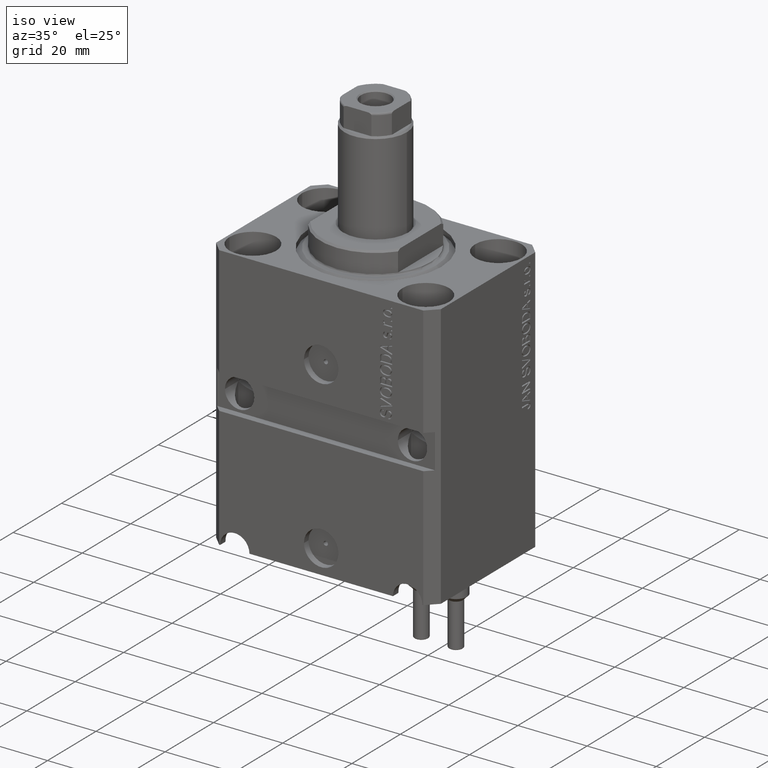
[diagram: clean part render]
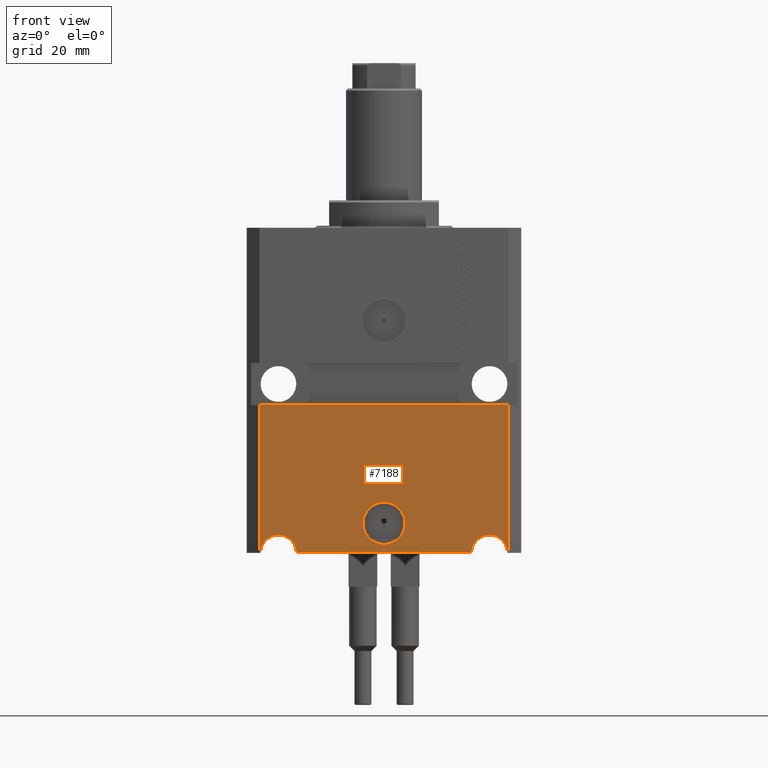
[diagram: tour spotlight — one face highlighted and labeled with its STEP entity id]
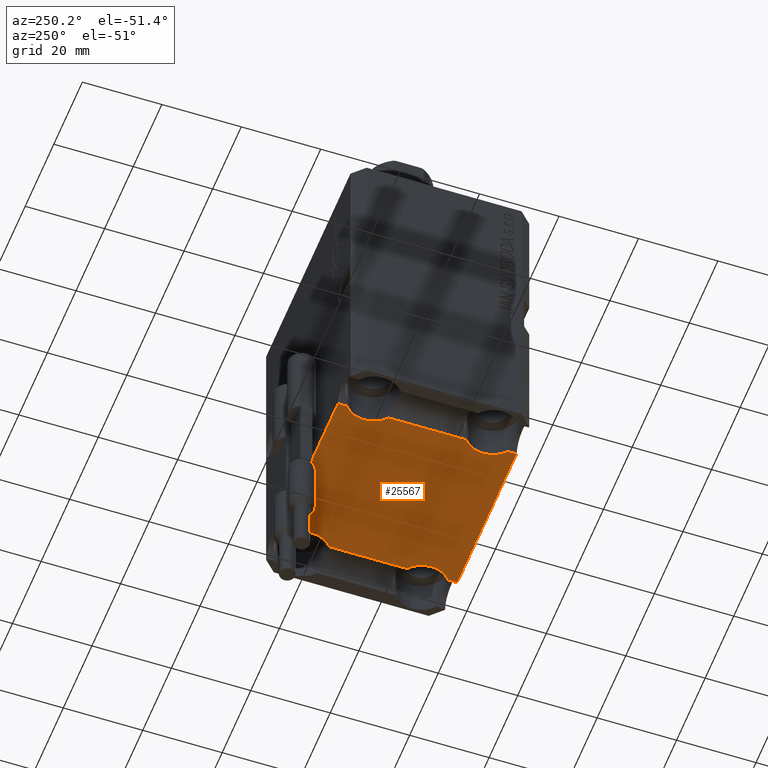
[diagram: tour spotlight — one face highlighted and labeled with its STEP entity id]
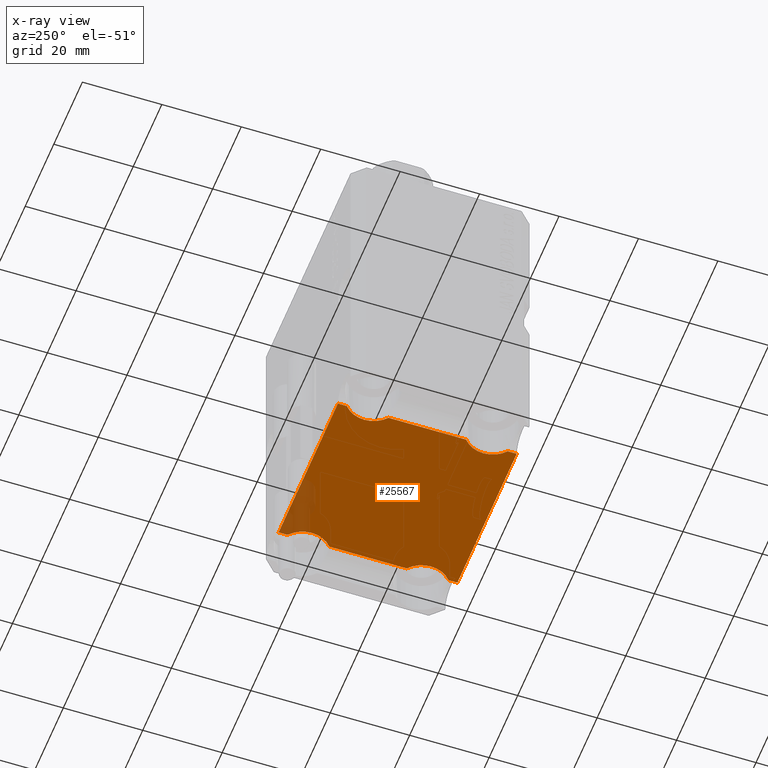
[diagram: x-ray of the same camera — body ghosted, this tour face saturated]
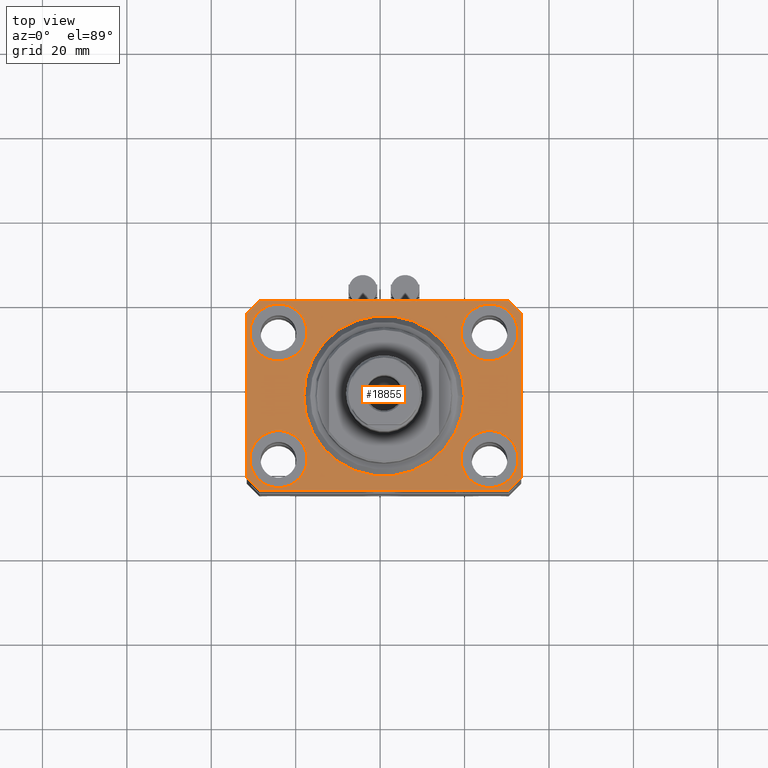
[diagram: tour spotlight — one face highlighted and labeled with its STEP entity id]
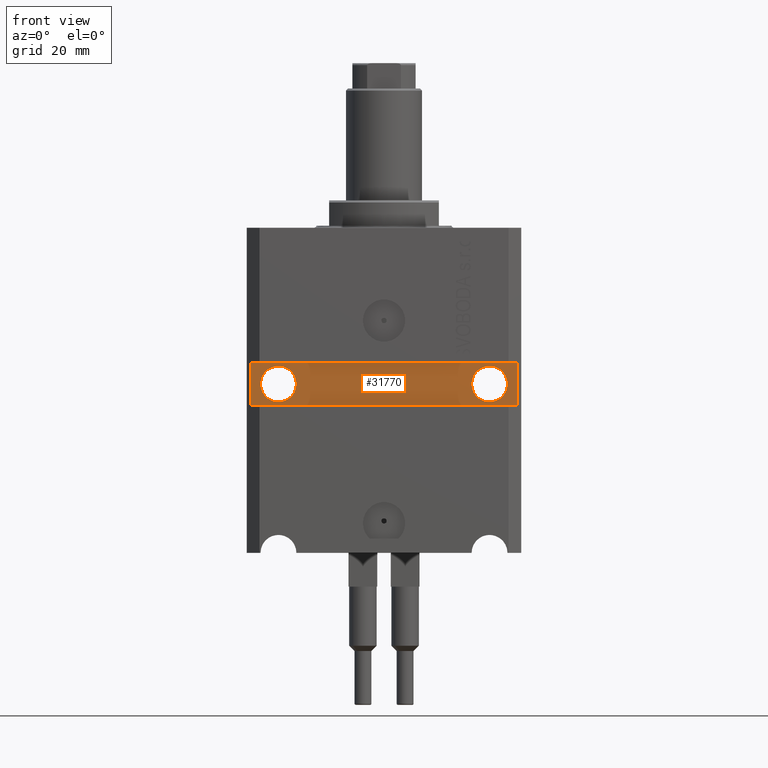
[diagram: tour spotlight — one face highlighted and labeled with its STEP entity id]
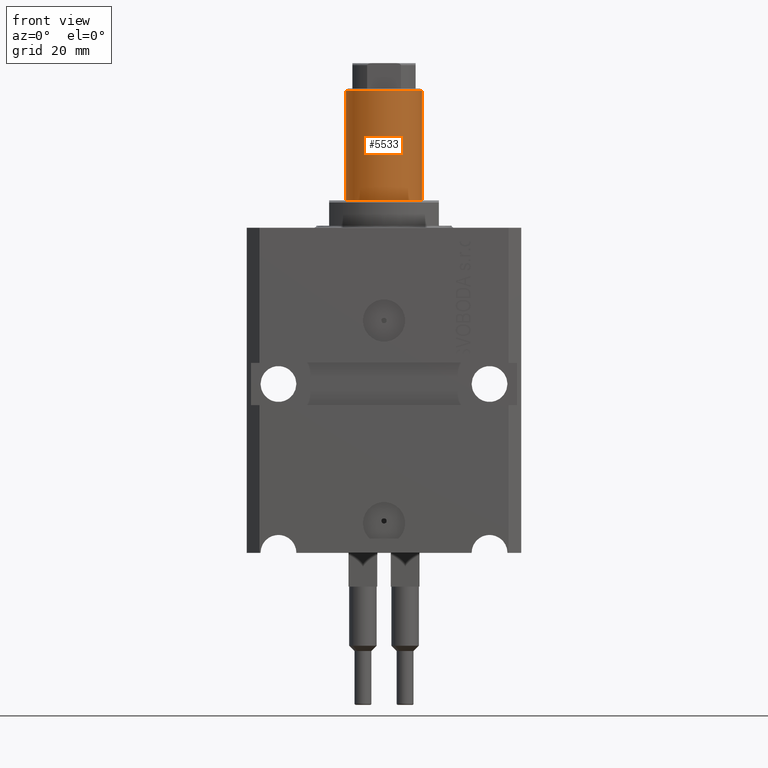
[diagram: tour spotlight — one face highlighted and labeled with its STEP entity id]
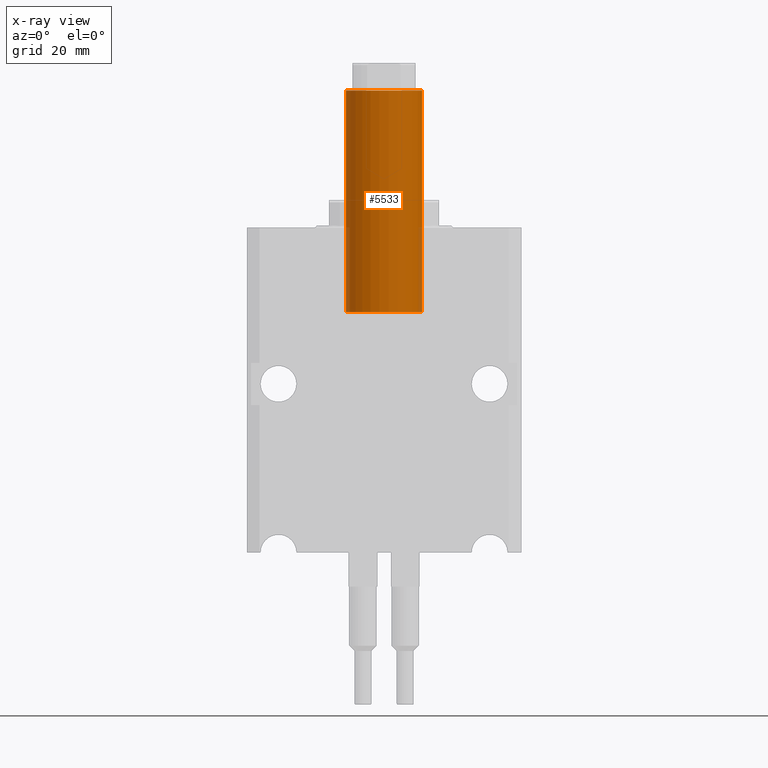
[diagram: x-ray of the same camera — body ghosted, this tour face saturated]
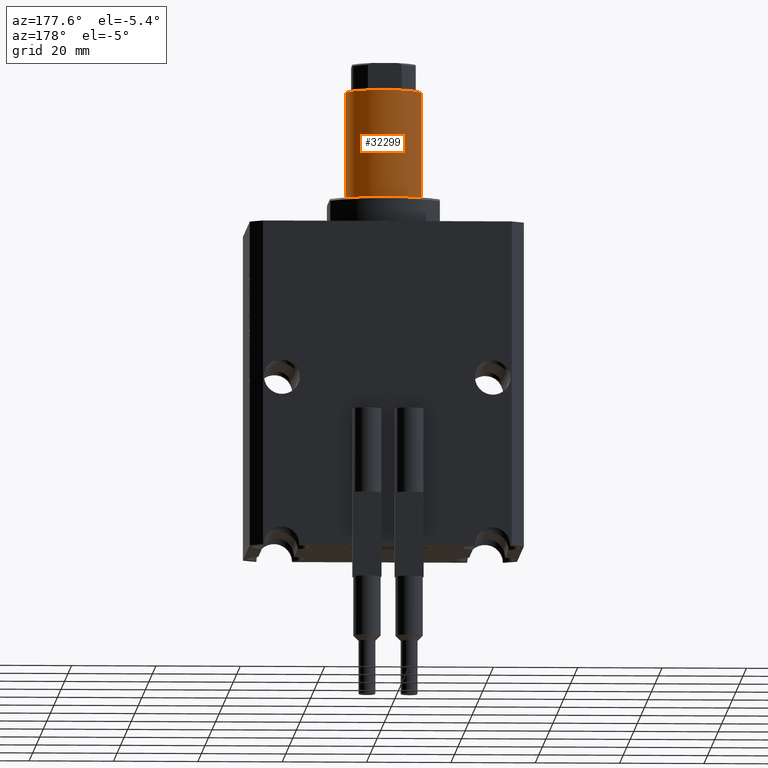
[diagram: tour spotlight — one face highlighted and labeled with its STEP entity id]
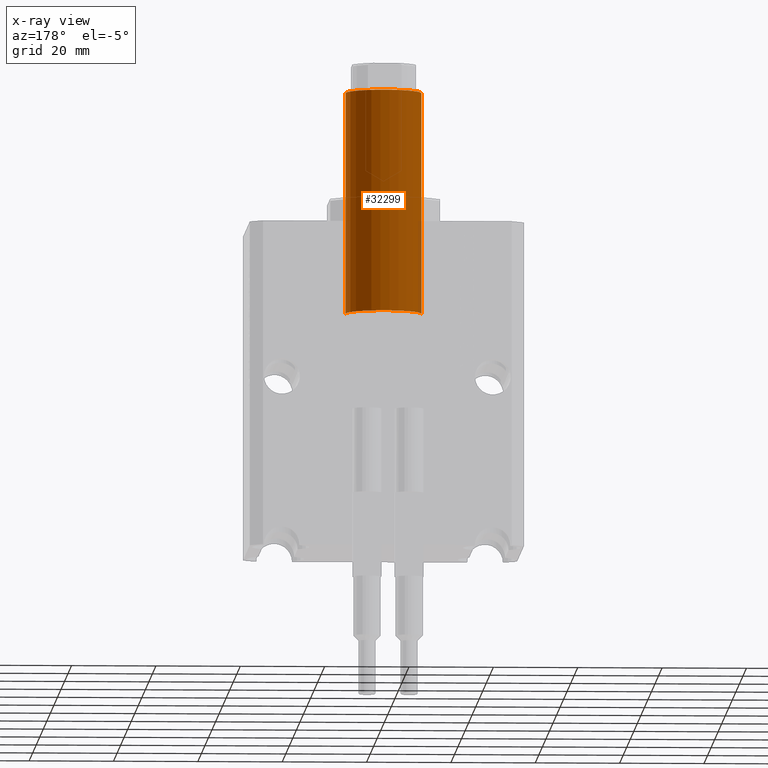
[diagram: x-ray of the same camera — body ghosted, this tour face saturated]
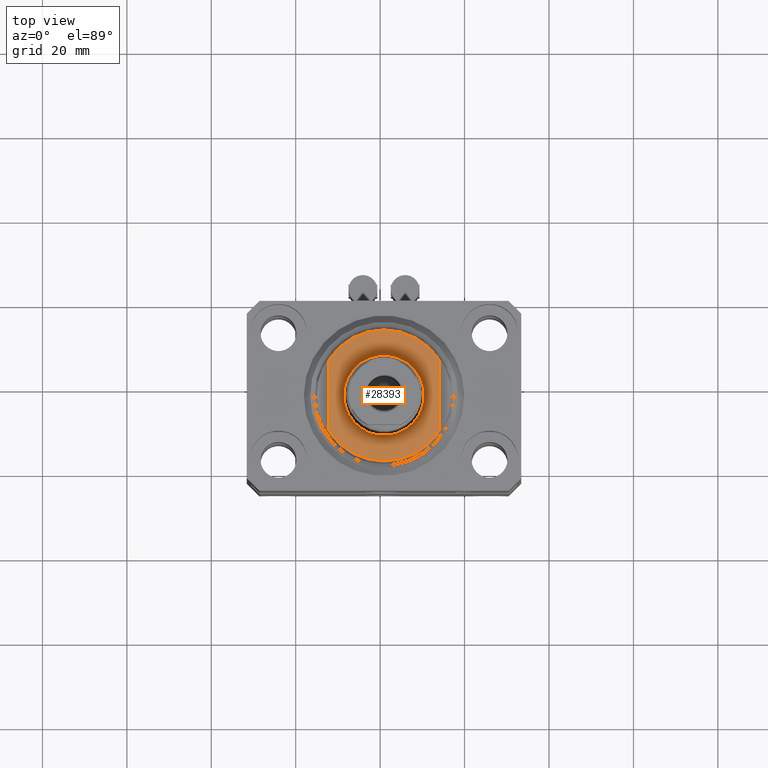
[diagram: tour spotlight — one face highlighted and labeled with its STEP entity id]
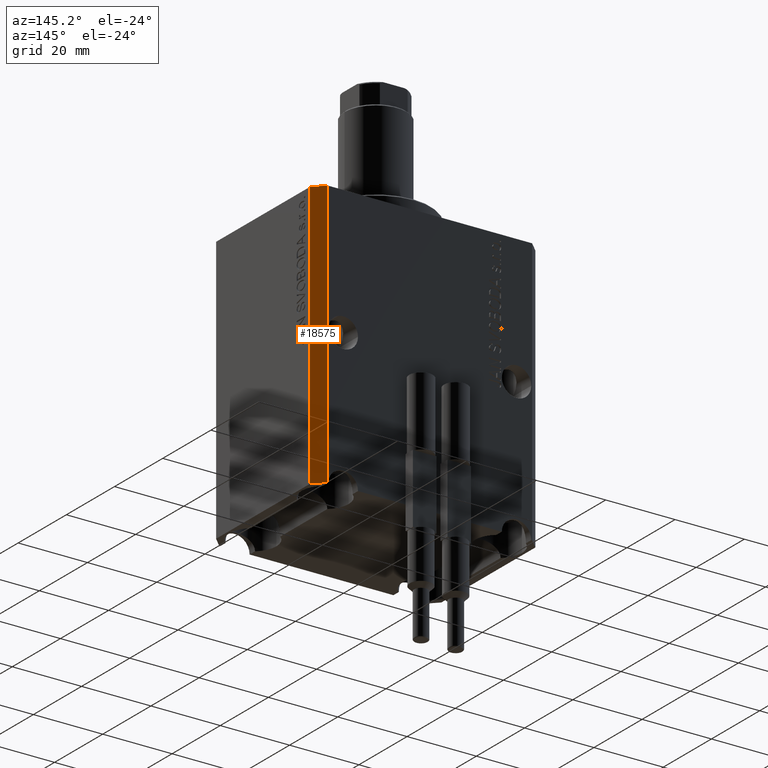
[diagram: tour spotlight — one face highlighted and labeled with its STEP entity id]
A machine part: a face-by-face anatomy tour. The part has 942 B-rep faces; the first image is the clean iso view, then the 8 largest visible faces are spotlighted one at a time (largest first), each with its STEP entity span.

Face 1 — front view, entity #7188. In plain terms, the highlighted planar face has unit normal (0, -1, 0).
Definition (entity closure, byte-faithful):
#49 = EDGE_CURVE ( 'NONE', #37355, #32564, #17503, .T. ) ;
#335 = CARTESIAN_POINT ( 'NONE',  ( -29.49999999999650413, -22.49999999999949907, -77.00000000000000000 ) ) ;
#1049 = ORIENTED_EDGE ( 'NONE', *, *, #6928, .F. ) ;
#1235 = EDGE_CURVE ( 'NONE', #37909, #37355, #30782, .T. ) ;
#1504 = CARTESIAN_POINT ( 'NONE',  ( 2.646188353185214061E-15, -22.49999999999949551, -69.99999999999998579 ) ) ;
#1871 = ORIENTED_EDGE ( 'NONE', *, *, #28465, .F. ) ;
#1921 = DIRECTION ( 'NONE',  ( 1.000000000000000000, 1.176083712526788232E-16, 0.000000000000000000 ) ) ;
#2574 = EDGE_CURVE ( 'NONE', #44089, #33179, #31419, .T. ) ;
#3001 = DIRECTION ( 'NONE',  ( -1.000000000000000000, 0.000000000000000000, 0.000000000000000000 ) ) ;
#3666 = EDGE_CURVE ( 'NONE', #22170, #32884, #26194, .T. ) ;
#3827 = CARTESIAN_POINT ( 'NONE',  ( -5.000000000000002665, -22.49999999999949551, -69.99999999999998579 ) ) ;
#3991 = PLANE ( 'NONE',  #37494 ) ;
#4064 = DIRECTION ( 'NONE',  ( 1.000000000000000000, 0.000000000000000000, 0.000000000000000000 ) ) ;
#4428 = VERTEX_POINT ( 'NONE', #32224 ) ;
#4723 = DIRECTION ( 'NONE',  ( 1.176083712526788232E-16, -1.000000000000000000, 0.000000000000000000 ) ) ;
#6928 = EDGE_CURVE ( 'NONE', #44089, #23544, #13746, .T. ) ;
#7188 = ADVANCED_FACE ( 'NONE', ( #27011, #31736 ), #3991, .T. ) ;
#7772 = AXIS2_PLACEMENT_3D ( 'NONE', #11399, #26011, #4064 ) ;
#8245 = VERTEX_POINT ( 'NONE', #3827 ) ;
#8329 = CARTESIAN_POINT ( 'NONE',  ( -29.49999999999650413, -22.49999999999949907, -41.99999999999999289 ) ) ;
#8832 = ORIENTED_EDGE ( 'NONE', *, *, #14986, .F. ) ;
#8926 = CARTESIAN_POINT ( 'NONE',  ( -32.49999999999650413, -22.49999999999949907, -41.99999999999999289 ) ) ;
#9190 = AXIS2_PLACEMENT_3D ( 'NONE', #13987, #23652, #3001 ) ;
#9461 = CARTESIAN_POINT ( 'NONE',  ( 20.75000000001094946, -22.49999999999949196, -77.00000000000000000 ) ) ;
#10593 = CIRCLE ( 'NONE', #36946, 4.249999999989057642 ) ;
#11088 = EDGE_CURVE ( 'NONE', #37909, #32884, #10593, .T. ) ;
#11135 = ORIENTED_EDGE ( 'NONE', *, *, #27193, .F. ) ;
#11399 = CARTESIAN_POINT ( 'NONE',  ( 2.646188353185214061E-15, -22.49999999999949551, -69.99999999999998579 ) ) ;
#11527 = CARTESIAN_POINT ( 'NONE',  ( -29.49999999999650413, -22.49999999999949907, -77.00000000000000000 ) ) ;
#12958 = VECTOR ( 'NONE', #16988, 1000.000000000000000 ) ;
#12972 = EDGE_CURVE ( 'NONE', #23544, #32564, #32988, .T. ) ;
#13017 = CARTESIAN_POINT ( 'NONE',  ( 25.00000000000000711, -22.49999999999949196, -76.99999999999998579 ) ) ;
#13296 = DIRECTION ( 'NONE',  ( 0.000000000000000000, 0.000000000000000000, 1.000000000000000000 ) ) ;
#13370 = CARTESIAN_POINT ( 'NONE',  ( -29.49999999999650413, -22.49999999999949907, -77.00000000000000000 ) ) ;
#13746 = LINE ( 'NONE', #27736, #27961 ) ;
#13987 = CARTESIAN_POINT ( 'NONE',  ( -25.00000000000000000, -22.49999999999949907, -76.99999999999998579 ) ) ;
#14124 = CIRCLE ( 'NONE', #21466, 5.000000000000005329 ) ;
#14425 = VECTOR ( 'NONE', #22758, 1000.000000000000000 ) ;
#14986 = EDGE_CURVE ( 'NONE', #4428, #8245, #14124, .T. ) ;
#15011 = VECTOR ( 'NONE', #1921, 1000.000000000000000 ) ;
#15757 = EDGE_LOOP ( 'NONE', ( #8832, #1871 ) ) ;
#15883 = CARTESIAN_POINT ( 'NONE',  ( -20.75000000002340883, -22.49999999999949907, -77.00000000000000000 ) ) ;
#16988 = DIRECTION ( 'NONE',  ( 1.000000000000000000, 1.176083712526788232E-16, 0.000000000000000000 ) ) ;
#17280 = DIRECTION ( 'NONE',  ( 0.000000000000000000, 0.000000000000000000, 1.000000000000000000 ) ) ;
#17503 = LINE ( 'NONE', #38138, #19029 ) ;
#17651 = CARTESIAN_POINT ( 'NONE',  ( -29.49999999999650413, -22.49999999999949907, -77.00000000000000000 ) ) ;
#19029 = VECTOR ( 'NONE', #17280, 1000.000000000000000 ) ;
#19668 = DIRECTION ( 'NONE',  ( 1.000000000000000000, 0.000000000000000000, 0.000000000000000000 ) ) ;
#20927 = ORIENTED_EDGE ( 'NONE', *, *, #2574, .T. ) ;
#21377 = CARTESIAN_POINT ( 'NONE',  ( -29.49999999999650413, -22.49999999999949907, -77.00000000000000000 ) ) ;
#21388 = EDGE_LOOP ( 'NONE', ( #33624, #24839, #29001, #34303, #1049, #20927, #11135, #29116 ) ) ;
#21466 = AXIS2_PLACEMENT_3D ( 'NONE', #1504, #4723, #39119 ) ;
#21655 = DIRECTION ( 'NONE',  ( 1.000000000000000000, 1.176083712526788232E-16, 0.000000000000000000 ) ) ;
#21986 = CARTESIAN_POINT ( 'NONE',  ( 29.49999999999650413, -22.49999999999949196, -77.00000000000000000 ) ) ;
#22170 = VERTEX_POINT ( 'NONE', #15883 ) ;
#22758 = DIRECTION ( 'NONE',  ( 1.000000000000000000, 1.176083712526788232E-16, 0.000000000000000000 ) ) ;
#23544 = VERTEX_POINT ( 'NONE', #8329 ) ;
#23652 = DIRECTION ( 'NONE',  ( 1.176083712526788232E-16, -1.000000000000000000, 0.000000000000000000 ) ) ;
#24016 = DIRECTION ( 'NONE',  ( 1.176083712526788232E-16, -1.000000000000000000, 0.000000000000000000 ) ) ;
#24839 = ORIENTED_EDGE ( 'NONE', *, *, #1235, .T. ) ;
#26011 = DIRECTION ( 'NONE',  ( 1.176083712526788232E-16, -1.000000000000000000, 0.000000000000000000 ) ) ;
#26194 = LINE ( 'NONE', #11527, #14425 ) ;
#26213 = CARTESIAN_POINT ( 'NONE',  ( 29.24999999998906475, -22.49999999999949196, -77.00000000000000000 ) ) ;
#26253 = CARTESIAN_POINT ( 'NONE',  ( 29.49999999999650058, -22.49999999999949196, -41.99999999999998579 ) ) ;
#27002 = DIRECTION ( 'NONE',  ( 1.176083712526788232E-16, -1.000000000000000000, 0.000000000000000000 ) ) ;
#27011 = FACE_BOUND ( 'NONE', #15757, .T. ) ;
#27193 = EDGE_CURVE ( 'NONE', #22170, #33179, #44326, .T. ) ;
#27736 = CARTESIAN_POINT ( 'NONE',  ( -29.49999999999650413, -22.49999999999949907, -77.00000000000000000 ) ) ;
#27961 = VECTOR ( 'NONE', #13296, 1000.000000000000000 ) ;
#28351 = CARTESIAN_POINT ( 'NONE',  ( -29.24999999997659472, -22.49999999999949907, -77.00000000000000000 ) ) ;
#28465 = EDGE_CURVE ( 'NONE', #8245, #4428, #34125, .T. ) ;
#29001 = ORIENTED_EDGE ( 'NONE', *, *, #49, .T. ) ;
#29116 = ORIENTED_EDGE ( 'NONE', *, *, #3666, .T. ) ;
#30782 = LINE ( 'NONE', #13370, #15011 ) ;
#31419 = LINE ( 'NONE', #17651, #12958 ) ;
#31736 = FACE_OUTER_BOUND ( 'NONE', #21388, .T. ) ;
#32224 = CARTESIAN_POINT ( 'NONE',  ( 5.000000000000007994, -22.49999999999949551, -69.99999999999998579 ) ) ;
#32564 = VERTEX_POINT ( 'NONE', #26253 ) ;
#32884 = VERTEX_POINT ( 'NONE', #9461 ) ;
#32988 = LINE ( 'NONE', #8926, #41257 ) ;
#33179 = VERTEX_POINT ( 'NONE', #28351 ) ;
#33624 = ORIENTED_EDGE ( 'NONE', *, *, #11088, .F. ) ;
#34125 = CIRCLE ( 'NONE', #7772, 5.000000000000005329 ) ;
#34303 = ORIENTED_EDGE ( 'NONE', *, *, #12972, .F. ) ;
#36946 = AXIS2_PLACEMENT_3D ( 'NONE', #13017, #27002, #19668 ) ;
#37349 = DIRECTION ( 'NONE',  ( 1.000000000000000000, 1.067522139062765303E-16, 1.067522139062765303E-16 ) ) ;
#37355 = VERTEX_POINT ( 'NONE', #21986 ) ;
#37494 = AXIS2_PLACEMENT_3D ( 'NONE', #335, #24016, #21655 ) ;
#37909 = VERTEX_POINT ( 'NONE', #26213 ) ;
#38138 = CARTESIAN_POINT ( 'NONE',  ( 29.49999999999650413, -22.49999999999949196, -77.00000000000000000 ) ) ;
#39119 = DIRECTION ( 'NONE',  ( 1.000000000000000000, 0.000000000000000000, 0.000000000000000000 ) ) ;
#41257 = VECTOR ( 'NONE', #37349, 1000.000000000000000 ) ;
#44089 = VERTEX_POINT ( 'NONE', #21377 ) ;
#44326 = CIRCLE ( 'NONE', #9190, 4.249999999976592058 ) ;

Face 2 — auxiliary view, entity #25567. An x-ray twin of the same camera follows (body ghosted, this face saturated) — the face is partly hidden behind the body. In plain terms, the highlighted planar face has unit normal (0, 0, 1).
Definition (entity closure, byte-faithful):
#196 = CARTESIAN_POINT ( 'NONE',  ( 20.75000000001094236, 20.24404424080615783, -77.00000000000000000 ) ) ;
#497 = CARTESIAN_POINT ( 'NONE',  ( -25.00000000000000355, -15.00000000000000000, -77.00000000000000000 ) ) ;
#972 = AXIS2_PLACEMENT_3D ( 'NONE', #1452, #24851, #28303 ) ;
#1277 = CARTESIAN_POINT ( 'NONE',  ( -20.75000000002341949, 22.49999999999952038, -77.00000000000000000 ) ) ;
#1319 = CARTESIAN_POINT ( 'NONE',  ( -20.75000000002341594, 22.49999999999952038, -77.00000000000000000 ) ) ;
#1349 = LINE ( 'NONE', #15333, #40193 ) ;
#1452 = CARTESIAN_POINT ( 'NONE',  ( 24.99999999999999645, 15.00000000000000888, -77.00000000000000000 ) ) ;
#1726 = CARTESIAN_POINT ( 'NONE',  ( 29.49999999999707967, 22.49999999999951328, -77.00000000000000000 ) ) ;
#2331 = ORIENTED_EDGE ( 'NONE', *, *, #15473, .T. ) ;
#2697 = EDGE_CURVE ( 'NONE', #35192, #7509, #42958, .T. ) ;
#3088 = VECTOR ( 'NONE', #10650, 1000.000000000000000 ) ;
#3155 = CIRCLE ( 'NONE', #972, 6.749999999958452790 ) ;
#3347 = VERTEX_POINT ( 'NONE', #196 ) ;
#3666 = EDGE_CURVE ( 'NONE', #22170, #32884, #26194, .T. ) ;
#4178 = ORIENTED_EDGE ( 'NONE', *, *, #39085, .T. ) ;
#4691 = DIRECTION ( 'NONE',  ( 1.000000000000000000, 0.000000000000000000, 0.000000000000000000 ) ) ;
#5841 = LINE ( 'NONE', #1726, #39480 ) ;
#5874 = DIRECTION ( 'NONE',  ( 1.000000000000000000, 0.000000000000000000, 0.000000000000000000 ) ) ;
#6937 = AXIS2_PLACEMENT_3D ( 'NONE', #36107, #25775, #4691 ) ;
#7056 = DIRECTION ( 'NONE',  ( 1.000000000000000000, 0.000000000000000000, 0.000000000000000000 ) ) ;
#7509 = VERTEX_POINT ( 'NONE', #19338 ) ;
#7592 = CARTESIAN_POINT ( 'NONE',  ( 20.75000000001094591, -9.755955759169378183, -77.00000000000000000 ) ) ;
#7966 = EDGE_CURVE ( 'NONE', #9433, #9208, #1349, .T. ) ;
#7972 = AXIS2_PLACEMENT_3D ( 'NONE', #10687, #41863, #14128 ) ;
#8049 = DIRECTION ( 'NONE',  ( -0.000000000000000000, -0.000000000000000000, 1.000000000000000000 ) ) ;
#8152 = LINE ( 'NONE', #1277, #22609 ) ;
#8386 = DIRECTION ( 'NONE',  ( -1.176083712526788478E-16, 1.000000000000000000, 0.000000000000000000 ) ) ;
#9208 = VERTEX_POINT ( 'NONE', #1319 ) ;
#9223 = AXIS2_PLACEMENT_3D ( 'NONE', #13481, #38012, #7056 ) ;
#9433 = VERTEX_POINT ( 'NONE', #14066 ) ;
#9461 = CARTESIAN_POINT ( 'NONE',  ( 20.75000000001094946, -22.49999999999949196, -77.00000000000000000 ) ) ;
#10286 = CARTESIAN_POINT ( 'NONE',  ( -18.24999999997747224, 15.00000000000000000, -77.00000000000000000 ) ) ;
#10650 = DIRECTION ( 'NONE',  ( 1.176083712526788478E-16, -1.000000000000000000, -0.000000000000000000 ) ) ;
#10687 = CARTESIAN_POINT ( 'NONE',  ( -25.00000000000000355, 15.00000000000000000, -77.00000000000000000 ) ) ;
#11108 = AXIS2_PLACEMENT_3D ( 'NONE', #19640, #37518, #5874 ) ;
#11255 = EDGE_CURVE ( 'NONE', #21034, #13891, #31799, .T. ) ;
#11426 = CARTESIAN_POINT ( 'NONE',  ( 18.25000000004154543, 15.00000000000000888, -77.00000000000000000 ) ) ;
#11527 = CARTESIAN_POINT ( 'NONE',  ( -29.49999999999650413, -22.49999999999949907, -77.00000000000000000 ) ) ;
#11963 = CARTESIAN_POINT ( 'NONE',  ( 20.75000000001094591, -20.24404424083062182, -77.00000000000000000 ) ) ;
#12343 = FACE_OUTER_BOUND ( 'NONE', #14742, .T. ) ;
#12629 = ORIENTED_EDGE ( 'NONE', *, *, #23838, .T. ) ;
#12882 = ORIENTED_EDGE ( 'NONE', *, *, #36873, .F. ) ;
#13038 = CARTESIAN_POINT ( 'NONE',  ( -20.75000000002341594, -9.755955759076794465, -77.00000000000000000 ) ) ;
#13481 = CARTESIAN_POINT ( 'NONE',  ( 25.00000000000000355, -15.00000000000000000, -77.00000000000000000 ) ) ;
#13838 = LINE ( 'NONE', #34471, #15434 ) ;
#13891 = VERTEX_POINT ( 'NONE', #10286 ) ;
#14066 = CARTESIAN_POINT ( 'NONE',  ( -20.75000000002341594, 20.24404424089873444, -77.00000000000000000 ) ) ;
#14128 = DIRECTION ( 'NONE',  ( 1.000000000000000000, 0.000000000000000000, 0.000000000000000000 ) ) ;
#14425 = VECTOR ( 'NONE', #22758, 1000.000000000000000 ) ;
#14430 = DIRECTION ( 'NONE',  ( -1.176083712526788478E-16, 1.000000000000000000, 0.000000000000000000 ) ) ;
#14728 = VERTEX_POINT ( 'NONE', #37777 ) ;
#14742 = EDGE_LOOP ( 'NONE', ( #12882, #40399, #2331, #12629, #39975, #38694, #19974, #40154, #18127, #25676, #40870, #4178, #25152, #41731, #25712, #42463 ) ) ;
#14781 = CIRCLE ( 'NONE', #43311, 6.749999999958452790 ) ;
#15333 = CARTESIAN_POINT ( 'NONE',  ( -20.75000000002341949, 22.49999999999952038, -77.00000000000000000 ) ) ;
#15434 = VECTOR ( 'NONE', #45014, 1000.000000000000000 ) ;
#15473 = EDGE_CURVE ( 'NONE', #3347, #18170, #3155, .T. ) ;
#15806 = CARTESIAN_POINT ( 'NONE',  ( 20.75000000001094591, 9.755955759193856380, -77.00000000000000000 ) ) ;
#15883 = CARTESIAN_POINT ( 'NONE',  ( -20.75000000002340883, -22.49999999999949907, -77.00000000000000000 ) ) ;
#17266 = CIRCLE ( 'NONE', #9223, 6.749999999977465137 ) ;
#17458 = CIRCLE ( 'NONE', #33560, 6.750000000041541881 ) ;
#17674 = DIRECTION ( 'NONE',  ( -0.000000000000000000, -0.000000000000000000, 1.000000000000000000 ) ) ;
#17679 = CIRCLE ( 'NONE', #11108, 6.749999999977465137 ) ;
#18127 = ORIENTED_EDGE ( 'NONE', *, *, #3666, .F. ) ;
#18170 = VERTEX_POINT ( 'NONE', #11426 ) ;
#19212 = CARTESIAN_POINT ( 'NONE',  ( 18.25000000002253842, -15.00000000000000000, -77.00000000000000000 ) ) ;
#19338 = CARTESIAN_POINT ( 'NONE',  ( -18.24999999995845812, -15.00000000000000000, -77.00000000000000000 ) ) ;
#19381 = DIRECTION ( 'NONE',  ( -1.000000000000000000, -2.352167425053553784E-16, 0.000000000000000000 ) ) ;
#19487 = DIRECTION ( 'NONE',  ( 1.176083712526788478E-16, -1.000000000000000000, -0.000000000000000000 ) ) ;
#19640 = CARTESIAN_POINT ( 'NONE',  ( 25.00000000000000355, -15.00000000000000000, -77.00000000000000000 ) ) ;
#19974 = ORIENTED_EDGE ( 'NONE', *, *, #20580, .T. ) ;
#20580 = EDGE_CURVE ( 'NONE', #34214, #27868, #17679, .T. ) ;
#21034 = VERTEX_POINT ( 'NONE', #38137 ) ;
#21076 = EDGE_CURVE ( 'NONE', #14728, #3347, #13838, .T. ) ;
#21588 = DIRECTION ( 'NONE',  ( 1.000000000000000000, 0.000000000000000000, 0.000000000000000000 ) ) ;
#21672 = EDGE_CURVE ( 'NONE', #22170, #35192, #29344, .T. ) ;
#22170 = VERTEX_POINT ( 'NONE', #15883 ) ;
#22609 = VECTOR ( 'NONE', #8386, 1000.000000000000000 ) ;
#22758 = DIRECTION ( 'NONE',  ( 1.000000000000000000, 1.176083712526788232E-16, 0.000000000000000000 ) ) ;
#23375 = CARTESIAN_POINT ( 'NONE',  ( -25.00000000000000355, -15.00000000000000000, -77.00000000000000000 ) ) ;
#23502 = VECTOR ( 'NONE', #44401, 1000.000000000000000 ) ;
#23813 = VERTEX_POINT ( 'NONE', #7592 ) ;
#23838 = EDGE_CURVE ( 'NONE', #18170, #27392, #14781, .T. ) ;
#24045 = CARTESIAN_POINT ( 'NONE',  ( 20.75000000001094236, 22.49999999999952749, -77.00000000000000000 ) ) ;
#24469 = DIRECTION ( 'NONE',  ( 0.000000000000000000, 0.000000000000000000, 1.000000000000000000 ) ) ;
#24851 = DIRECTION ( 'NONE',  ( -0.000000000000000000, -0.000000000000000000, 1.000000000000000000 ) ) ;
#25152 = ORIENTED_EDGE ( 'NONE', *, *, #38552, .T. ) ;
#25567 = ADVANCED_FACE ( 'NONE', ( #12343 ), #26336, .F. ) ;
#25676 = ORIENTED_EDGE ( 'NONE', *, *, #21672, .T. ) ;
#25712 = ORIENTED_EDGE ( 'NONE', *, *, #32338, .T. ) ;
#25775 = DIRECTION ( 'NONE',  ( -0.000000000000000000, -0.000000000000000000, 1.000000000000000000 ) ) ;
#26194 = LINE ( 'NONE', #11527, #14425 ) ;
#26336 = PLANE ( 'NONE',  #41355 ) ;
#27392 = VERTEX_POINT ( 'NONE', #15806 ) ;
#27490 = LINE ( 'NONE', #24045, #41473 ) ;
#27868 = VERTEX_POINT ( 'NONE', #11963 ) ;
#28303 = DIRECTION ( 'NONE',  ( 1.000000000000000000, 0.000000000000000000, 0.000000000000000000 ) ) ;
#28364 = EDGE_CURVE ( 'NONE', #23813, #34214, #17266, .T. ) ;
#29344 = LINE ( 'NONE', #44622, #23502 ) ;
#30099 = EDGE_CURVE ( 'NONE', #27868, #32884, #27490, .T. ) ;
#30498 = AXIS2_PLACEMENT_3D ( 'NONE', #23375, #41231, #43760 ) ;
#30886 = CARTESIAN_POINT ( 'NONE',  ( 0.000000000000000000, 0.000000000000000000, -77.00000000000000000 ) ) ;
#31119 = DIRECTION ( 'NONE',  ( 1.000000000000000000, 0.000000000000000000, -0.000000000000000000 ) ) ;
#31799 = CIRCLE ( 'NONE', #6937, 6.750000000022533087 ) ;
#32338 = EDGE_CURVE ( 'NONE', #13891, #9433, #37982, .T. ) ;
#32798 = DIRECTION ( 'NONE',  ( 1.000000000000000000, 0.000000000000000000, 0.000000000000000000 ) ) ;
#32884 = VERTEX_POINT ( 'NONE', #9461 ) ;
#33560 = AXIS2_PLACEMENT_3D ( 'NONE', #497, #8049, #32798 ) ;
#34214 = VERTEX_POINT ( 'NONE', #19212 ) ;
#34471 = CARTESIAN_POINT ( 'NONE',  ( 20.75000000001094236, 22.49999999999952749, -77.00000000000000000 ) ) ;
#35171 = LINE ( 'NONE', #42501, #3088 ) ;
#35192 = VERTEX_POINT ( 'NONE', #40930 ) ;
#36107 = CARTESIAN_POINT ( 'NONE',  ( -25.00000000000000355, 15.00000000000000000, -77.00000000000000000 ) ) ;
#36873 = EDGE_CURVE ( 'NONE', #14728, #9208, #5841, .T. ) ;
#37518 = DIRECTION ( 'NONE',  ( -0.000000000000000000, -0.000000000000000000, 1.000000000000000000 ) ) ;
#37777 = CARTESIAN_POINT ( 'NONE',  ( 20.75000000001094236, 22.49999999999952749, -77.00000000000000000 ) ) ;
#37982 = CIRCLE ( 'NONE', #7972, 6.750000000022533087 ) ;
#38012 = DIRECTION ( 'NONE',  ( -0.000000000000000000, -0.000000000000000000, 1.000000000000000000 ) ) ;
#38137 = CARTESIAN_POINT ( 'NONE',  ( -20.75000000002341949, 9.755955759101265556, -77.00000000000000000 ) ) ;
#38552 = EDGE_CURVE ( 'NONE', #44451, #21034, #8152, .T. ) ;
#38694 = ORIENTED_EDGE ( 'NONE', *, *, #28364, .T. ) ;
#38764 = CARTESIAN_POINT ( 'NONE',  ( 24.99999999999999645, 15.00000000000000888, -77.00000000000000000 ) ) ;
#39085 = EDGE_CURVE ( 'NONE', #7509, #44451, #17458, .T. ) ;
#39480 = VECTOR ( 'NONE', #19381, 1000.000000000000000 ) ;
#39797 = EDGE_CURVE ( 'NONE', #27392, #23813, #35171, .T. ) ;
#39975 = ORIENTED_EDGE ( 'NONE', *, *, #39797, .T. ) ;
#40154 = ORIENTED_EDGE ( 'NONE', *, *, #30099, .T. ) ;
#40193 = VECTOR ( 'NONE', #14430, 1000.000000000000000 ) ;
#40399 = ORIENTED_EDGE ( 'NONE', *, *, #21076, .T. ) ;
#40870 = ORIENTED_EDGE ( 'NONE', *, *, #2697, .T. ) ;
#40930 = CARTESIAN_POINT ( 'NONE',  ( -20.75000000002341594, -20.24404424092320554, -77.00000000000000000 ) ) ;
#41231 = DIRECTION ( 'NONE',  ( -0.000000000000000000, -0.000000000000000000, 1.000000000000000000 ) ) ;
#41355 = AXIS2_PLACEMENT_3D ( 'NONE', #30886, #24469, #31119 ) ;
#41473 = VECTOR ( 'NONE', #19487, 1000.000000000000000 ) ;
#41731 = ORIENTED_EDGE ( 'NONE', *, *, #11255, .T. ) ;
#41863 = DIRECTION ( 'NONE',  ( -0.000000000000000000, -0.000000000000000000, 1.000000000000000000 ) ) ;
#42463 = ORIENTED_EDGE ( 'NONE', *, *, #7966, .T. ) ;
#42501 = CARTESIAN_POINT ( 'NONE',  ( 20.75000000001094236, 22.49999999999952749, -77.00000000000000000 ) ) ;
#42958 = CIRCLE ( 'NONE', #30498, 6.750000000041541881 ) ;
#43311 = AXIS2_PLACEMENT_3D ( 'NONE', #38764, #17674, #21588 ) ;
#43760 = DIRECTION ( 'NONE',  ( 1.000000000000000000, 0.000000000000000000, 0.000000000000000000 ) ) ;
#44401 = DIRECTION ( 'NONE',  ( -1.176083712526788478E-16, 1.000000000000000000, 0.000000000000000000 ) ) ;
#44451 = VERTEX_POINT ( 'NONE', #13038 ) ;
#44622 = CARTESIAN_POINT ( 'NONE',  ( -20.75000000002341949, 22.49999999999952038, -77.00000000000000000 ) ) ;
#45014 = DIRECTION ( 'NONE',  ( 1.176083712526788478E-16, -1.000000000000000000, -0.000000000000000000 ) ) ;

Face 3 — top view, entity #18855. In plain terms, the highlighted planar face has unit normal (0, 0, 1).
Definition (entity closure, byte-faithful):
#662 = CARTESIAN_POINT ( 'NONE',  ( -32.49999999999650413, -19.49999999999949907, 0.000000000000000000 ) ) ;
#1254 = EDGE_CURVE ( 'NONE', #40457, #27078, #39880, .T. ) ;
#1255 = VERTEX_POINT ( 'NONE', #31916 ) ;
#1554 = CARTESIAN_POINT ( 'NONE',  ( 32.49999999999651124, -19.49999999999949196, 0.000000000000000000 ) ) ;
#1647 = VECTOR ( 'NONE', #40247, 1000.000000000000000 ) ;
#1653 = AXIS2_PLACEMENT_3D ( 'NONE', #32908, #43669, #15719 ) ;
#1832 = VERTEX_POINT ( 'NONE', #44216 ) ;
#1954 = EDGE_CURVE ( 'NONE', #42399, #1832, #5371, .T. ) ;
#1967 = CARTESIAN_POINT ( 'NONE',  ( -32.49999999999650413, 19.49999999999949907, 0.000000000000000000 ) ) ;
#2564 = VERTEX_POINT ( 'NONE', #34638 ) ;
#2734 = DIRECTION ( 'NONE',  ( 0.000000000000000000, 0.000000000000000000, 1.000000000000000000 ) ) ;
#2868 = EDGE_CURVE ( 'NONE', #31639, #31306, #3430, .T. ) ;
#3136 = LINE ( 'NONE', #6803, #16022 ) ;
#3386 = DIRECTION ( 'NONE',  ( 0.000000000000000000, 0.000000000000000000, 1.000000000000000000 ) ) ;
#3396 = CARTESIAN_POINT ( 'NONE',  ( 25.00000000000000355, -15.00000000000000000, 0.000000000000000000 ) ) ;
#3426 = FACE_BOUND ( 'NONE', #32605, .T. ) ;
#3430 = CIRCLE ( 'NONE', #36357, 6.749999999977465137 ) ;
#3468 = VERTEX_POINT ( 'NONE', #7190 ) ;
#3975 = LINE ( 'NONE', #14072, #27221 ) ;
#4594 = AXIS2_PLACEMENT_3D ( 'NONE', #10310, #39174, #17405 ) ;
#4623 = CIRCLE ( 'NONE', #10455, 6.749999999977465137 ) ;
#5371 = CIRCLE ( 'NONE', #32476, 19.00000000000000000 ) ;
#5599 = ORIENTED_EDGE ( 'NONE', *, *, #23420, .T. ) ;
#6042 = ORIENTED_EDGE ( 'NONE', *, *, #2868, .F. ) ;
#6803 = CARTESIAN_POINT ( 'NONE',  ( 29.49999999999650413, -22.49999999999949196, 0.000000000000000000 ) ) ;
#7190 = CARTESIAN_POINT ( 'NONE',  ( -29.49999999999650413, 22.49999999999949907, 0.000000000000000000 ) ) ;
#7500 = VERTEX_POINT ( 'NONE', #22779 ) ;
#7521 = CARTESIAN_POINT ( 'NONE',  ( 18.25000000002253842, -15.00000000000000000, 0.000000000000000000 ) ) ;
#7543 = PLANE ( 'NONE',  #4594 ) ;
#9833 = DIRECTION ( 'NONE',  ( 1.000000000000000000, 0.000000000000000000, 0.000000000000000000 ) ) ;
#10198 = VECTOR ( 'NONE', #31226, 1000.000000000000000 ) ;
#10310 = CARTESIAN_POINT ( 'NONE',  ( 0.000000000000000000, 0.000000000000000000, 0.000000000000000000 ) ) ;
#10365 = CARTESIAN_POINT ( 'NONE',  ( 29.49999999999707967, 22.49999999999951328, 0.000000000000000000 ) ) ;
#10455 = AXIS2_PLACEMENT_3D ( 'NONE', #18844, #42911, #36046 ) ;
#10464 = ORIENTED_EDGE ( 'NONE', *, *, #16278, .T. ) ;
#10498 = CARTESIAN_POINT ( 'NONE',  ( 0.000000000000000000, 0.000000000000000000, 0.000000000000000000 ) ) ;
#10869 = CARTESIAN_POINT ( 'NONE',  ( 0.000000000000000000, 0.000000000000000000, 0.000000000000000000 ) ) ;
#10949 = DIRECTION ( 'NONE',  ( 1.000000000000000000, 0.000000000000000000, 0.000000000000000000 ) ) ;
#11104 = LINE ( 'NONE', #28762, #34676 ) ;
#11328 = CARTESIAN_POINT ( 'NONE',  ( -31.75000000002253842, 15.00000000000000000, 0.000000000000000000 ) ) ;
#11406 = CIRCLE ( 'NONE', #39969, 6.750000000041541881 ) ;
#11442 = CARTESIAN_POINT ( 'NONE',  ( 18.25000000004154543, 15.00000000000000888, 0.000000000000000000 ) ) ;
#11839 = ORIENTED_EDGE ( 'NONE', *, *, #1254, .F. ) ;
#11847 = ORIENTED_EDGE ( 'NONE', *, *, #37981, .T. ) ;
#13448 = ORIENTED_EDGE ( 'NONE', *, *, #24177, .T. ) ;
#13881 = EDGE_CURVE ( 'NONE', #34808, #15394, #17754, .T. ) ;
#14072 = CARTESIAN_POINT ( 'NONE',  ( -29.49999999999650413, -22.49999999999949907, 0.000000000000000000 ) ) ;
#14140 = EDGE_CURVE ( 'NONE', #15394, #34808, #21434, .T. ) ;
#14367 = DIRECTION ( 'NONE',  ( 1.000000000000000000, 0.000000000000000000, 0.000000000000000000 ) ) ;
#14641 = DIRECTION ( 'NONE',  ( 0.7071067811865474617, -0.7071067811865474617, 0.000000000000000000 ) ) ;
#15394 = VERTEX_POINT ( 'NONE', #11328 ) ;
#15719 = DIRECTION ( 'NONE',  ( 1.000000000000000000, 0.000000000000000000, 0.000000000000000000 ) ) ;
#15951 = LINE ( 'NONE', #1967, #1647 ) ;
#16022 = VECTOR ( 'NONE', #17341, 1000.000000000000000 ) ;
#16162 = ORIENTED_EDGE ( 'NONE', *, *, #43210, .F. ) ;
#16222 = CARTESIAN_POINT ( 'NONE',  ( -32.49999999999650413, 19.49999999999949907, 0.000000000000000000 ) ) ;
#16278 = EDGE_CURVE ( 'NONE', #3468, #18171, #11104, .T. ) ;
#16478 = CARTESIAN_POINT ( 'NONE',  ( 19.00000000000000000, 0.000000000000000000, 0.000000000000000000 ) ) ;
#17164 = AXIS2_PLACEMENT_3D ( 'NONE', #10869, #34947, #27848 ) ;
#17167 = DIRECTION ( 'NONE',  ( 0.000000000000000000, 0.000000000000000000, 1.000000000000000000 ) ) ;
#17177 = CARTESIAN_POINT ( 'NONE',  ( 32.49999999999702993, 19.49999999999945999, 0.000000000000000000 ) ) ;
#17222 = ORIENTED_EDGE ( 'NONE', *, *, #32066, .F. ) ;
#17341 = DIRECTION ( 'NONE',  ( 0.7071067811865483499, 0.7071067811865466846, 0.000000000000000000 ) ) ;
#17354 = CIRCLE ( 'NONE', #42979, 6.750000000041541881 ) ;
#17405 = DIRECTION ( 'NONE',  ( 1.000000000000000000, 0.000000000000000000, -0.000000000000000000 ) ) ;
#17426 = VERTEX_POINT ( 'NONE', #20508 ) ;
#17736 = DIRECTION ( 'NONE',  ( 1.000000000000000000, 1.176083712526788232E-16, 0.000000000000000000 ) ) ;
#17754 = CIRCLE ( 'NONE', #20714, 6.750000000022533087 ) ;
#17823 = CARTESIAN_POINT ( 'NONE',  ( -25.00000000000000355, -15.00000000000000000, 0.000000000000000000 ) ) ;
#18089 = LINE ( 'NONE', #662, #26293 ) ;
#18134 = EDGE_CURVE ( 'NONE', #33635, #25704, #32960, .T. ) ;
#18171 = VERTEX_POINT ( 'NONE', #16222 ) ;
#18844 = CARTESIAN_POINT ( 'NONE',  ( 25.00000000000000355, -15.00000000000000000, 0.000000000000000000 ) ) ;
#18855 = ADVANCED_FACE ( 'NONE', ( #3426, #35512, #41937, #35050, #28861, #28629 ), #7543, .T. ) ;
#18919 = CARTESIAN_POINT ( 'NONE',  ( 31.74999999997746869, -15.00000000000000000, 0.000000000000000000 ) ) ;
#19443 = CARTESIAN_POINT ( 'NONE',  ( -32.49999999999650413, -19.49999999999949907, 0.000000000000000000 ) ) ;
#19858 = CARTESIAN_POINT ( 'NONE',  ( 29.49999999999707967, 22.49999999999951328, 0.000000000000000000 ) ) ;
#19953 = AXIS2_PLACEMENT_3D ( 'NONE', #38219, #35224, #14367 ) ;
#20391 = DIRECTION ( 'NONE',  ( 1.000000000000000000, 0.000000000000000000, 0.000000000000000000 ) ) ;
#20481 = DIRECTION ( 'NONE',  ( 0.000000000000000000, 0.000000000000000000, 1.000000000000000000 ) ) ;
#20508 = CARTESIAN_POINT ( 'NONE',  ( -18.24999999995846167, -15.00000000000000000, 0.000000000000000000 ) ) ;
#20613 = CARTESIAN_POINT ( 'NONE',  ( -25.00000000000000355, -15.00000000000000000, 0.000000000000000000 ) ) ;
#20714 = AXIS2_PLACEMENT_3D ( 'NONE', #34141, #2734, #9833 ) ;
#20843 = CIRCLE ( 'NONE', #17164, 19.00000000000000000 ) ;
#21379 = DIRECTION ( 'NONE',  ( 1.000000000000000000, 0.000000000000000000, 0.000000000000000000 ) ) ;
#21434 = CIRCLE ( 'NONE', #1653, 6.750000000022533087 ) ;
#21886 = DIRECTION ( 'NONE',  ( -0.7071067811865474617, -0.7071067811865474617, 0.000000000000000000 ) ) ;
#22412 = DIRECTION ( 'NONE',  ( 0.000000000000000000, 0.000000000000000000, 1.000000000000000000 ) ) ;
#22779 = CARTESIAN_POINT ( 'NONE',  ( 29.49999999999650413, -22.49999999999949196, 0.000000000000000000 ) ) ;
#23420 = EDGE_CURVE ( 'NONE', #1255, #7500, #3975, .T. ) ;
#24177 = EDGE_CURVE ( 'NONE', #25704, #26542, #35270, .T. ) ;
#24310 = VERTEX_POINT ( 'NONE', #19443 ) ;
#24696 = DIRECTION ( 'NONE',  ( 0.000000000000000000, 0.000000000000000000, 1.000000000000000000 ) ) ;
#24776 = EDGE_CURVE ( 'NONE', #1832, #42399, #20843, .T. ) ;
#25141 = CARTESIAN_POINT ( 'NONE',  ( 32.49999999999702993, 19.49999999999945999, 0.000000000000000000 ) ) ;
#25262 = EDGE_LOOP ( 'NONE', ( #11847, #10464, #43254, #38912, #5599, #27835, #29959, #13448 ) ) ;
#25704 = VERTEX_POINT ( 'NONE', #25141 ) ;
#25795 = CIRCLE ( 'NONE', #19953, 6.749999999958452790 ) ;
#26293 = VECTOR ( 'NONE', #14641, 1000.000000000000114 ) ;
#26542 = VERTEX_POINT ( 'NONE', #19858 ) ;
#26580 = EDGE_LOOP ( 'NONE', ( #35250, #31300 ) ) ;
#26910 = ORIENTED_EDGE ( 'NONE', *, *, #1954, .F. ) ;
#27078 = VERTEX_POINT ( 'NONE', #40146 ) ;
#27221 = VECTOR ( 'NONE', #17736, 1000.000000000000000 ) ;
#27583 = CARTESIAN_POINT ( 'NONE',  ( 24.99999999999999645, 15.00000000000000888, 0.000000000000000000 ) ) ;
#27835 = ORIENTED_EDGE ( 'NONE', *, *, #36557, .T. ) ;
#27840 = ORIENTED_EDGE ( 'NONE', *, *, #24776, .F. ) ;
#27848 = DIRECTION ( 'NONE',  ( 1.000000000000000000, 0.000000000000000000, 0.000000000000000000 ) ) ;
#28013 = LINE ( 'NONE', #10365, #10198 ) ;
#28336 = EDGE_CURVE ( 'NONE', #2564, #17426, #11406, .T. ) ;
#28403 = DIRECTION ( 'NONE',  ( -0.7071067811865352493, 0.7071067811865597852, 0.000000000000000000 ) ) ;
#28629 = FACE_OUTER_BOUND ( 'NONE', #25262, .T. ) ;
#28762 = CARTESIAN_POINT ( 'NONE',  ( -29.49999999999650413, 22.49999999999949907, 0.000000000000000000 ) ) ;
#28850 = DIRECTION ( 'NONE',  ( 1.334402673828349134E-14, 1.000000000000000000, 0.000000000000000000 ) ) ;
#28861 = FACE_BOUND ( 'NONE', #31676, .T. ) ;
#29959 = ORIENTED_EDGE ( 'NONE', *, *, #18134, .T. ) ;
#31226 = DIRECTION ( 'NONE',  ( -1.000000000000000000, -2.352167425053553784E-16, 0.000000000000000000 ) ) ;
#31300 = ORIENTED_EDGE ( 'NONE', *, *, #14140, .F. ) ;
#31306 = VERTEX_POINT ( 'NONE', #7521 ) ;
#31639 = VERTEX_POINT ( 'NONE', #18919 ) ;
#31676 = EDGE_LOOP ( 'NONE', ( #26910, #27840 ) ) ;
#31807 = DIRECTION ( 'NONE',  ( 1.000000000000000000, 0.000000000000000000, 0.000000000000000000 ) ) ;
#31916 = CARTESIAN_POINT ( 'NONE',  ( -29.49999999999650413, -22.49999999999949907, 0.000000000000000000 ) ) ;
#32066 = EDGE_CURVE ( 'NONE', #17426, #2564, #17354, .T. ) ;
#32476 = AXIS2_PLACEMENT_3D ( 'NONE', #10498, #24696, #41676 ) ;
#32605 = EDGE_LOOP ( 'NONE', ( #17222, #35996 ) ) ;
#32908 = CARTESIAN_POINT ( 'NONE',  ( -25.00000000000000355, 15.00000000000000000, 0.000000000000000000 ) ) ;
#32960 = LINE ( 'NONE', #1554, #43334 ) ;
#33093 = EDGE_LOOP ( 'NONE', ( #38400, #11839 ) ) ;
#33635 = VERTEX_POINT ( 'NONE', #45025 ) ;
#34141 = CARTESIAN_POINT ( 'NONE',  ( -25.00000000000000355, 15.00000000000000000, 0.000000000000000000 ) ) ;
#34638 = CARTESIAN_POINT ( 'NONE',  ( -31.75000000004154899, -15.00000000000000000, 0.000000000000000000 ) ) ;
#34676 = VECTOR ( 'NONE', #21886, 1000.000000000000114 ) ;
#34808 = VERTEX_POINT ( 'NONE', #44250 ) ;
#34947 = DIRECTION ( 'NONE',  ( 0.000000000000000000, 0.000000000000000000, 1.000000000000000000 ) ) ;
#35050 = FACE_BOUND ( 'NONE', #26580, .T. ) ;
#35224 = DIRECTION ( 'NONE',  ( 0.000000000000000000, 0.000000000000000000, 1.000000000000000000 ) ) ;
#35250 = ORIENTED_EDGE ( 'NONE', *, *, #13881, .F. ) ;
#35270 = LINE ( 'NONE', #17177, #44791 ) ;
#35512 = FACE_BOUND ( 'NONE', #44954, .T. ) ;
#35996 = ORIENTED_EDGE ( 'NONE', *, *, #28336, .F. ) ;
#36046 = DIRECTION ( 'NONE',  ( 1.000000000000000000, 0.000000000000000000, 0.000000000000000000 ) ) ;
#36357 = AXIS2_PLACEMENT_3D ( 'NONE', #3396, #22412, #10949 ) ;
#36557 = EDGE_CURVE ( 'NONE', #7500, #33635, #3136, .T. ) ;
#37306 = EDGE_CURVE ( 'NONE', #24310, #1255, #18089, .T. ) ;
#37701 = AXIS2_PLACEMENT_3D ( 'NONE', #27583, #20481, #21379 ) ;
#37981 = EDGE_CURVE ( 'NONE', #26542, #3468, #28013, .T. ) ;
#38219 = CARTESIAN_POINT ( 'NONE',  ( 24.99999999999999645, 15.00000000000000888, 0.000000000000000000 ) ) ;
#38400 = ORIENTED_EDGE ( 'NONE', *, *, #41605, .F. ) ;
#38912 = ORIENTED_EDGE ( 'NONE', *, *, #37306, .T. ) ;
#39174 = DIRECTION ( 'NONE',  ( 0.000000000000000000, 0.000000000000000000, 1.000000000000000000 ) ) ;
#39880 = CIRCLE ( 'NONE', #37701, 6.749999999958452790 ) ;
#39969 = AXIS2_PLACEMENT_3D ( 'NONE', #17823, #3386, #31807 ) ;
#40146 = CARTESIAN_POINT ( 'NONE',  ( 31.74999999995845101, 15.00000000000000888, 0.000000000000000000 ) ) ;
#40247 = DIRECTION ( 'NONE',  ( 0.000000000000000000, -1.000000000000000000, 0.000000000000000000 ) ) ;
#40457 = VERTEX_POINT ( 'NONE', #11442 ) ;
#41605 = EDGE_CURVE ( 'NONE', #27078, #40457, #25795, .T. ) ;
#41676 = DIRECTION ( 'NONE',  ( 1.000000000000000000, 0.000000000000000000, 0.000000000000000000 ) ) ;
#41839 = EDGE_CURVE ( 'NONE', #18171, #24310, #15951, .T. ) ;
#41937 = FACE_BOUND ( 'NONE', #33093, .T. ) ;
#42399 = VERTEX_POINT ( 'NONE', #16478 ) ;
#42911 = DIRECTION ( 'NONE',  ( 0.000000000000000000, 0.000000000000000000, 1.000000000000000000 ) ) ;
#42979 = AXIS2_PLACEMENT_3D ( 'NONE', #20613, #17167, #20391 ) ;
#43210 = EDGE_CURVE ( 'NONE', #31306, #31639, #4623, .T. ) ;
#43254 = ORIENTED_EDGE ( 'NONE', *, *, #41839, .T. ) ;
#43334 = VECTOR ( 'NONE', #28850, 1000.000000000000000 ) ;
#43669 = DIRECTION ( 'NONE',  ( 0.000000000000000000, 0.000000000000000000, 1.000000000000000000 ) ) ;
#44216 = CARTESIAN_POINT ( 'NONE',  ( -19.00000000000000000, 2.326828918379970970E-15, 0.000000000000000000 ) ) ;
#44250 = CARTESIAN_POINT ( 'NONE',  ( -18.24999999997747224, 15.00000000000000000, 0.000000000000000000 ) ) ;
#44791 = VECTOR ( 'NONE', #28403, 1000.000000000000000 ) ;
#44954 = EDGE_LOOP ( 'NONE', ( #6042, #16162 ) ) ;
#45025 = CARTESIAN_POINT ( 'NONE',  ( 32.49999999999651124, -19.49999999999949196, 0.000000000000000000 ) ) ;

Face 4 — front view, entity #31770. In plain terms, the highlighted planar face has unit normal (0, -1, 0).
Definition (entity closure, byte-faithful):
#572 = EDGE_LOOP ( 'NONE', ( #30284, #16531 ) ) ;
#786 = CARTESIAN_POINT ( 'NONE',  ( -20.75000000000621014, -20.49999999999950262, -37.00000000000000000 ) ) ;
#1008 = CARTESIAN_POINT ( 'NONE',  ( 32.49999999999650413, -20.49999999999949196, -32.00000000000000711 ) ) ;
#1775 = CARTESIAN_POINT ( 'NONE',  ( -31.49999999999650413, -20.49999999999950262, -77.00000000000000000 ) ) ;
#1858 = EDGE_CURVE ( 'NONE', #28780, #4301, #9152, .T. ) ;
#2632 = FACE_OUTER_BOUND ( 'NONE', #11130, .T. ) ;
#3018 = CARTESIAN_POINT ( 'NONE',  ( -31.49999999999650413, -20.49999999999950262, -32.00000000000000000 ) ) ;
#3096 = CARTESIAN_POINT ( 'NONE',  ( -31.49999999999650413, -20.49999999999949907, -41.99999999999999289 ) ) ;
#3167 = VERTEX_POINT ( 'NONE', #15127 ) ;
#4293 = ORIENTED_EDGE ( 'NONE', *, *, #14655, .T. ) ;
#4301 = VERTEX_POINT ( 'NONE', #15771 ) ;
#5370 = DIRECTION ( 'NONE',  ( 1.000000000000000000, 0.000000000000000000, 0.000000000000000000 ) ) ;
#5447 = EDGE_CURVE ( 'NONE', #28780, #9777, #35849, .T. ) ;
#5601 = DIRECTION ( 'NONE',  ( 1.101411730780568590E-16, -1.000000000000000000, 0.000000000000000000 ) ) ;
#5700 = CARTESIAN_POINT ( 'NONE',  ( 31.49999999999651124, -20.49999999999949551, -77.00000000000000000 ) ) ;
#5717 = DIRECTION ( 'NONE',  ( 1.394545208792185644E-16, -1.000000000000000000, 1.232595164407830946E-32 ) ) ;
#6290 = FACE_BOUND ( 'NONE', #572, .T. ) ;
#6490 = VERTEX_POINT ( 'NONE', #33074 ) ;
#7119 = AXIS2_PLACEMENT_3D ( 'NONE', #31268, #9958, #20959 ) ;
#8785 = EDGE_CURVE ( 'NONE', #3167, #9093, #37973, .T. ) ;
#8883 = DIRECTION ( 'NONE',  ( 0.000000000000000000, 0.000000000000000000, 1.000000000000000000 ) ) ;
#9055 = EDGE_CURVE ( 'NONE', #9093, #3167, #26259, .T. ) ;
#9093 = VERTEX_POINT ( 'NONE', #13947 ) ;
#9152 = LINE ( 'NONE', #5700, #13978 ) ;
#9777 = VERTEX_POINT ( 'NONE', #3018 ) ;
#9958 = DIRECTION ( 'NONE',  ( 1.067522139062765303E-16, -1.000000000000000000, 0.000000000000000000 ) ) ;
#10156 = AXIS2_PLACEMENT_3D ( 'NONE', #26822, #5717, #33238 ) ;
#10407 = FACE_BOUND ( 'NONE', #32503, .T. ) ;
#10465 = DIRECTION ( 'NONE',  ( 1.101411730780568590E-16, -1.000000000000000000, 0.000000000000000000 ) ) ;
#10492 = VECTOR ( 'NONE', #11664, 1000.000000000000000 ) ;
#11130 = EDGE_LOOP ( 'NONE', ( #36328, #28043, #4293, #41013 ) ) ;
#11664 = DIRECTION ( 'NONE',  ( 1.000000000000000000, 1.067522139062765303E-16, 1.067522139062765303E-16 ) ) ;
#13116 = VECTOR ( 'NONE', #8883, 1000.000000000000000 ) ;
#13947 = CARTESIAN_POINT ( 'NONE',  ( 20.75000000001095657, -20.49999999999949551, -36.99999999999999289 ) ) ;
#13978 = VECTOR ( 'NONE', #19696, 1000.000000000000000 ) ;
#14655 = EDGE_CURVE ( 'NONE', #16098, #4301, #18540, .T. ) ;
#15127 = CARTESIAN_POINT ( 'NONE',  ( 29.24999999998905764, -20.49999999999949551, -36.99999999999999289 ) ) ;
#15771 = CARTESIAN_POINT ( 'NONE',  ( 31.49999999999650413, -20.49999999999949196, -41.99999999999998579 ) ) ;
#16094 = CARTESIAN_POINT ( 'NONE',  ( 31.49999999999651124, -20.49999999999949196, -32.00000000000000711 ) ) ;
#16098 = VERTEX_POINT ( 'NONE', #3096 ) ;
#16101 = CARTESIAN_POINT ( 'NONE',  ( 25.00000000000000711, -20.49999999999949551, -36.99999999999999289 ) ) ;
#16531 = ORIENTED_EDGE ( 'NONE', *, *, #9055, .F. ) ;
#17947 = VECTOR ( 'NONE', #28973, 1000.000000000000000 ) ;
#18314 = CARTESIAN_POINT ( 'NONE',  ( -32.49999999999650413, -20.49999999999949907, -41.99999999999999289 ) ) ;
#18540 = LINE ( 'NONE', #18314, #10492 ) ;
#19197 = ORIENTED_EDGE ( 'NONE', *, *, #29725, .F. ) ;
#19696 = DIRECTION ( 'NONE',  ( 0.000000000000000000, 0.000000000000000000, -1.000000000000000000 ) ) ;
#19773 = DIRECTION ( 'NONE',  ( 1.000000000000000000, 0.000000000000000000, 0.000000000000000000 ) ) ;
#19998 = DIRECTION ( 'NONE',  ( 1.394545208792185644E-16, -1.000000000000000000, 1.232595164407830946E-32 ) ) ;
#20959 = DIRECTION ( 'NONE',  ( 1.000000000000000000, 1.067522139062765303E-16, 0.000000000000000000 ) ) ;
#23778 = CARTESIAN_POINT ( 'NONE',  ( -24.99999999999999289, -20.49999999999950262, -37.00000000000000000 ) ) ;
#24665 = DIRECTION ( 'NONE',  ( 1.000000000000000000, 0.000000000000000000, 0.000000000000000000 ) ) ;
#26259 = CIRCLE ( 'NONE', #10156, 4.249999999989050536 ) ;
#26309 = LINE ( 'NONE', #1775, #13116 ) ;
#26472 = CARTESIAN_POINT ( 'NONE',  ( -24.99999999999999289, -20.49999999999950262, -37.00000000000000000 ) ) ;
#26822 = CARTESIAN_POINT ( 'NONE',  ( 25.00000000000000711, -20.49999999999949551, -36.99999999999999289 ) ) ;
#27386 = PLANE ( 'NONE',  #7119 ) ;
#28043 = ORIENTED_EDGE ( 'NONE', *, *, #32226, .F. ) ;
#28780 = VERTEX_POINT ( 'NONE', #16094 ) ;
#28814 = ORIENTED_EDGE ( 'NONE', *, *, #32341, .F. ) ;
#28973 = DIRECTION ( 'NONE',  ( -1.000000000000000000, -1.067522139062765303E-16, 1.067522139062765303E-16 ) ) ;
#29725 = EDGE_CURVE ( 'NONE', #40833, #6490, #37065, .T. ) ;
#30284 = ORIENTED_EDGE ( 'NONE', *, *, #8785, .F. ) ;
#31268 = CARTESIAN_POINT ( 'NONE',  ( 2.166708070385810581E-15, -20.49999999999949907, 0.000000000000000000 ) ) ;
#31770 = ADVANCED_FACE ( 'NONE', ( #6290, #10407, #2632 ), #27386, .T. ) ;
#32226 = EDGE_CURVE ( 'NONE', #16098, #9777, #26309, .T. ) ;
#32341 = EDGE_CURVE ( 'NONE', #6490, #40833, #40165, .T. ) ;
#32503 = EDGE_LOOP ( 'NONE', ( #19197, #28814 ) ) ;
#32869 = AXIS2_PLACEMENT_3D ( 'NONE', #23778, #10465, #24665 ) ;
#33074 = CARTESIAN_POINT ( 'NONE',  ( -29.24999999999377920, -20.49999999999950262, -37.00000000000000000 ) ) ;
#33238 = DIRECTION ( 'NONE',  ( 1.000000000000000000, 0.000000000000000000, 0.000000000000000000 ) ) ;
#34870 = AXIS2_PLACEMENT_3D ( 'NONE', #26472, #5601, #5370 ) ;
#35849 = LINE ( 'NONE', #1008, #17947 ) ;
#36328 = ORIENTED_EDGE ( 'NONE', *, *, #5447, .T. ) ;
#37065 = CIRCLE ( 'NONE', #34870, 4.249999999993782751 ) ;
#37973 = CIRCLE ( 'NONE', #39445, 4.249999999989050536 ) ;
#39445 = AXIS2_PLACEMENT_3D ( 'NONE', #16101, #19998, #19773 ) ;
#40165 = CIRCLE ( 'NONE', #32869, 4.249999999993782751 ) ;
#40833 = VERTEX_POINT ( 'NONE', #786 ) ;
#41013 = ORIENTED_EDGE ( 'NONE', *, *, #1858, .F. ) ;

Face 5 — front view, entity #5533. An x-ray twin of the same camera follows (body ghosted, this face saturated) — the face is partly hidden behind the body. In plain terms, the highlighted cylindrical surface (partial cylindrical patch) has radius 9 mm, axis along (-0, -0, -1).
Definition (entity closure, byte-faithful):
#733 = CARTESIAN_POINT ( 'NONE',  ( 9.000000000000000000, 1.102182119232617714E-15, 78.00000000000000000 ) ) ;
#1250 = ORIENTED_EDGE ( 'NONE', *, *, #6586, .T. ) ;
#1375 = VERTEX_POINT ( 'NONE', #8523 ) ;
#1649 = AXIS2_PLACEMENT_3D ( 'NONE', #15373, #19044, #16063 ) ;
#3243 = FACE_OUTER_BOUND ( 'NONE', #6672, .T. ) ;
#4755 = AXIS2_PLACEMENT_3D ( 'NONE', #17893, #24097, #38975 ) ;
#5533 = ADVANCED_FACE ( 'NONE', ( #3243 ), #35308, .T. ) ;
#6586 = EDGE_CURVE ( 'NONE', #24533, #42088, #43332, .T. ) ;
#6672 = EDGE_LOOP ( 'NONE', ( #41864, #1250, #9117, #32257 ) ) ;
#8488 = LINE ( 'NONE', #18583, #9309 ) ;
#8523 = CARTESIAN_POINT ( 'NONE',  ( 9.000000000000000000, 1.102182119232617714E-15, 25.00000000000000000 ) ) ;
#9117 = ORIENTED_EDGE ( 'NONE', *, *, #31818, .T. ) ;
#9309 = VECTOR ( 'NONE', #25452, 1000.000000000000000 ) ;
#11862 = EDGE_CURVE ( 'NONE', #24533, #1375, #22285, .T. ) ;
#15373 = CARTESIAN_POINT ( 'NONE',  ( 0.000000000000000000, 0.000000000000000000, 25.00000000000000000 ) ) ;
#16063 = DIRECTION ( 'NONE',  ( 1.000000000000000000, 0.000000000000000000, 0.000000000000000000 ) ) ;
#16349 = DIRECTION ( 'NONE',  ( 1.000000000000000000, 0.000000000000000000, 0.000000000000000000 ) ) ;
#16466 = VECTOR ( 'NONE', #28927, 1000.000000000000000 ) ;
#17893 = CARTESIAN_POINT ( 'NONE',  ( 0.000000000000000000, 0.000000000000000000, 78.00000000000000000 ) ) ;
#18583 = CARTESIAN_POINT ( 'NONE',  ( -9.000000000000000000, 0.000000000000000000, 78.00000000000000000 ) ) ;
#18681 = EDGE_CURVE ( 'NONE', #44557, #1375, #19230, .T. ) ;
#18902 = CARTESIAN_POINT ( 'NONE',  ( -9.000000000000000000, 0.000000000000000000, 25.00000000000000000 ) ) ;
#19044 = DIRECTION ( 'NONE',  ( 0.000000000000000000, 0.000000000000000000, 1.000000000000000000 ) ) ;
#19230 = CIRCLE ( 'NONE', #1649, 9.000000000000000000 ) ;
#20637 = AXIS2_PLACEMENT_3D ( 'NONE', #37439, #33767, #16349 ) ;
#22285 = LINE ( 'NONE', #733, #16466 ) ;
#24097 = DIRECTION ( 'NONE',  ( -0.000000000000000000, -0.000000000000000000, -1.000000000000000000 ) ) ;
#24533 = VERTEX_POINT ( 'NONE', #28801 ) ;
#25452 = DIRECTION ( 'NONE',  ( -0.000000000000000000, -0.000000000000000000, -1.000000000000000000 ) ) ;
#28801 = CARTESIAN_POINT ( 'NONE',  ( 9.000000000000000000, 1.102182119232617714E-15, 77.49999999999998579 ) ) ;
#28927 = DIRECTION ( 'NONE',  ( -0.000000000000000000, -0.000000000000000000, -1.000000000000000000 ) ) ;
#31818 = EDGE_CURVE ( 'NONE', #42088, #44557, #8488, .T. ) ;
#32257 = ORIENTED_EDGE ( 'NONE', *, *, #18681, .T. ) ;
#33767 = DIRECTION ( 'NONE',  ( 0.000000000000000000, 0.000000000000000000, -1.000000000000000000 ) ) ;
#33944 = CARTESIAN_POINT ( 'NONE',  ( -9.000000000000000000, 0.000000000000000000, 77.49999999999998579 ) ) ;
#35308 = CYLINDRICAL_SURFACE ( 'NONE', #4755, 9.000000000000000000 ) ;
#37439 = CARTESIAN_POINT ( 'NONE',  ( 0.000000000000000000, 0.000000000000000000, 77.49999999999998579 ) ) ;
#38975 = DIRECTION ( 'NONE',  ( -1.000000000000000000, 0.000000000000000000, 0.000000000000000000 ) ) ;
#41864 = ORIENTED_EDGE ( 'NONE', *, *, #11862, .F. ) ;
#42088 = VERTEX_POINT ( 'NONE', #33944 ) ;
#43332 = CIRCLE ( 'NONE', #20637, 9.000000000000000000 ) ;
#44557 = VERTEX_POINT ( 'NONE', #18902 ) ;

Face 6 — auxiliary view, entity #32299. An x-ray twin of the same camera follows (body ghosted, this face saturated) — the face is partly hidden behind the body. In plain terms, the highlighted cylindrical surface (partial cylindrical patch) has radius 9 mm, axis along (-0, -0, -1).
Definition (entity closure, byte-faithful):
#733 = CARTESIAN_POINT ( 'NONE',  ( 9.000000000000000000, 1.102182119232617714E-15, 78.00000000000000000 ) ) ;
#868 = ORIENTED_EDGE ( 'NONE', *, *, #24089, .T. ) ;
#1375 = VERTEX_POINT ( 'NONE', #8523 ) ;
#2115 = AXIS2_PLACEMENT_3D ( 'NONE', #21245, #35212, #3809 ) ;
#2356 = CIRCLE ( 'NONE', #10405, 9.000000000000000000 ) ;
#3809 = DIRECTION ( 'NONE',  ( 1.000000000000000000, 0.000000000000000000, 0.000000000000000000 ) ) ;
#3867 = CARTESIAN_POINT ( 'NONE',  ( 0.000000000000000000, 0.000000000000000000, 77.49999999999998579 ) ) ;
#6055 = ORIENTED_EDGE ( 'NONE', *, *, #31818, .F. ) ;
#8488 = LINE ( 'NONE', #18583, #9309 ) ;
#8523 = CARTESIAN_POINT ( 'NONE',  ( 9.000000000000000000, 1.102182119232617714E-15, 25.00000000000000000 ) ) ;
#9309 = VECTOR ( 'NONE', #25452, 1000.000000000000000 ) ;
#10405 = AXIS2_PLACEMENT_3D ( 'NONE', #3867, #14194, #10969 ) ;
#10969 = DIRECTION ( 'NONE',  ( 1.000000000000000000, 0.000000000000000000, 0.000000000000000000 ) ) ;
#11862 = EDGE_CURVE ( 'NONE', #24533, #1375, #22285, .T. ) ;
#14194 = DIRECTION ( 'NONE',  ( 0.000000000000000000, 0.000000000000000000, -1.000000000000000000 ) ) ;
#15382 = ORIENTED_EDGE ( 'NONE', *, *, #36643, .T. ) ;
#16466 = VECTOR ( 'NONE', #28927, 1000.000000000000000 ) ;
#18583 = CARTESIAN_POINT ( 'NONE',  ( -9.000000000000000000, 0.000000000000000000, 78.00000000000000000 ) ) ;
#18902 = CARTESIAN_POINT ( 'NONE',  ( -9.000000000000000000, 0.000000000000000000, 25.00000000000000000 ) ) ;
#18969 = AXIS2_PLACEMENT_3D ( 'NONE', #37979, #34532, #38196 ) ;
#21245 = CARTESIAN_POINT ( 'NONE',  ( 0.000000000000000000, 0.000000000000000000, 25.00000000000000000 ) ) ;
#21667 = EDGE_LOOP ( 'NONE', ( #868, #30768, #15382, #6055 ) ) ;
#22285 = LINE ( 'NONE', #733, #16466 ) ;
#24089 = EDGE_CURVE ( 'NONE', #42088, #24533, #2356, .T. ) ;
#24533 = VERTEX_POINT ( 'NONE', #28801 ) ;
#25452 = DIRECTION ( 'NONE',  ( -0.000000000000000000, -0.000000000000000000, -1.000000000000000000 ) ) ;
#28801 = CARTESIAN_POINT ( 'NONE',  ( 9.000000000000000000, 1.102182119232617714E-15, 77.49999999999998579 ) ) ;
#28927 = DIRECTION ( 'NONE',  ( -0.000000000000000000, -0.000000000000000000, -1.000000000000000000 ) ) ;
#30768 = ORIENTED_EDGE ( 'NONE', *, *, #11862, .T. ) ;
#31098 = FACE_OUTER_BOUND ( 'NONE', #21667, .T. ) ;
#31818 = EDGE_CURVE ( 'NONE', #42088, #44557, #8488, .T. ) ;
#32299 = ADVANCED_FACE ( 'NONE', ( #31098 ), #44626, .T. ) ;
#33944 = CARTESIAN_POINT ( 'NONE',  ( -9.000000000000000000, 0.000000000000000000, 77.49999999999998579 ) ) ;
#34532 = DIRECTION ( 'NONE',  ( -0.000000000000000000, -0.000000000000000000, -1.000000000000000000 ) ) ;
#35212 = DIRECTION ( 'NONE',  ( 0.000000000000000000, 0.000000000000000000, 1.000000000000000000 ) ) ;
#36643 = EDGE_CURVE ( 'NONE', #1375, #44557, #37263, .T. ) ;
#37263 = CIRCLE ( 'NONE', #2115, 9.000000000000000000 ) ;
#37979 = CARTESIAN_POINT ( 'NONE',  ( 0.000000000000000000, 0.000000000000000000, 78.00000000000000000 ) ) ;
#38196 = DIRECTION ( 'NONE',  ( -1.000000000000000000, 0.000000000000000000, 0.000000000000000000 ) ) ;
#42088 = VERTEX_POINT ( 'NONE', #33944 ) ;
#44557 = VERTEX_POINT ( 'NONE', #18902 ) ;
#44626 = CYLINDRICAL_SURFACE ( 'NONE', #18969, 9.000000000000000000 ) ;

Face 7 — top view, entity #28393. In plain terms, the highlighted planar face has unit normal (0, 0, 1).
Definition (entity closure, byte-faithful):
#375 = CARTESIAN_POINT ( 'NONE',  ( -13.00000000000000000, -8.440971508067137918, -6.500000000000000000 ) ) ;
#1487 = CARTESIAN_POINT ( 'NONE',  ( 0.000000000000000000, 0.000000000000000000, -6.500000000000000000 ) ) ;
#1562 = VECTOR ( 'NONE', #5726, 1000.000000000000000 ) ;
#2071 = CARTESIAN_POINT ( 'NONE',  ( 9.500000000000001776, 1.163414459189985880E-15, -6.500000000000000000 ) ) ;
#2940 = FACE_OUTER_BOUND ( 'NONE', #19410, .T. ) ;
#3560 = ORIENTED_EDGE ( 'NONE', *, *, #30360, .T. ) ;
#4910 = ORIENTED_EDGE ( 'NONE', *, *, #16321, .T. ) ;
#5661 = DIRECTION ( 'NONE',  ( 0.000000000000000000, 0.000000000000000000, -1.000000000000000000 ) ) ;
#5726 = DIRECTION ( 'NONE',  ( -0.000000000000000000, -1.000000000000000000, -0.000000000000000000 ) ) ;
#6832 = CARTESIAN_POINT ( 'NONE',  ( 0.000000000000000000, 0.000000000000000000, -6.500000000000000000 ) ) ;
#9224 = CARTESIAN_POINT ( 'NONE',  ( 0.000000000000000000, 0.000000000000000000, -6.500000000000000000 ) ) ;
#9478 = LINE ( 'NONE', #36763, #19298 ) ;
#10983 = DIRECTION ( 'NONE',  ( -1.000000000000000000, 0.000000000000000000, 0.000000000000000000 ) ) ;
#11453 = VERTEX_POINT ( 'NONE', #24637 ) ;
#12227 = CIRCLE ( 'NONE', #17322, 9.500000000000001776 ) ;
#13751 = CARTESIAN_POINT ( 'NONE',  ( 0.000000000000000000, 0.000000000000000000, -6.500000000000000000 ) ) ;
#15077 = VERTEX_POINT ( 'NONE', #42551 ) ;
#16321 = EDGE_CURVE ( 'NONE', #37402, #15077, #9478, .T. ) ;
#16359 = DIRECTION ( 'NONE',  ( 0.000000000000000000, -1.000000000000000000, -0.000000000000000000 ) ) ;
#17322 = AXIS2_PLACEMENT_3D ( 'NONE', #1487, #39772, #18467 ) ;
#18467 = DIRECTION ( 'NONE',  ( -1.000000000000000000, 0.000000000000000000, 0.000000000000000000 ) ) ;
#19298 = VECTOR ( 'NONE', #16359, 1000.000000000000000 ) ;
#19410 = EDGE_LOOP ( 'NONE', ( #3560, #4910, #26056, #27194 ) ) ;
#20311 = EDGE_LOOP ( 'NONE', ( #23948, #20666 ) ) ;
#20666 = ORIENTED_EDGE ( 'NONE', *, *, #30666, .T. ) ;
#20872 = DIRECTION ( 'NONE',  ( 0.000000000000000000, 0.000000000000000000, -1.000000000000000000 ) ) ;
#21411 = EDGE_CURVE ( 'NONE', #11453, #23928, #36685, .T. ) ;
#21719 = AXIS2_PLACEMENT_3D ( 'NONE', #40511, #5661, #23546 ) ;
#22753 = DIRECTION ( 'NONE',  ( -0.000000000000000000, -0.000000000000000000, 1.000000000000000000 ) ) ;
#22963 = EDGE_CURVE ( 'NONE', #27356, #32484, #40806, .T. ) ;
#23546 = DIRECTION ( 'NONE',  ( -1.000000000000000000, 0.000000000000000000, 0.000000000000000000 ) ) ;
#23928 = VERTEX_POINT ( 'NONE', #2071 ) ;
#23948 = ORIENTED_EDGE ( 'NONE', *, *, #21411, .T. ) ;
#24637 = CARTESIAN_POINT ( 'NONE',  ( -9.500000000000001776, 0.000000000000000000, -6.500000000000000000 ) ) ;
#25367 = EDGE_CURVE ( 'NONE', #15077, #32484, #35493, .T. ) ;
#26056 = ORIENTED_EDGE ( 'NONE', *, *, #25367, .T. ) ;
#27194 = ORIENTED_EDGE ( 'NONE', *, *, #22963, .F. ) ;
#27356 = VERTEX_POINT ( 'NONE', #32771 ) ;
#27577 = CIRCLE ( 'NONE', #21719, 15.50000000000003730 ) ;
#28150 = PLANE ( 'NONE',  #28982 ) ;
#28393 = ADVANCED_FACE ( 'NONE', ( #38233, #2940 ), #28150, .T. ) ;
#28982 = AXIS2_PLACEMENT_3D ( 'NONE', #6832, #31350, #45325 ) ;
#30360 = EDGE_CURVE ( 'NONE', #27356, #37402, #27577, .T. ) ;
#30666 = EDGE_CURVE ( 'NONE', #23928, #11453, #12227, .T. ) ;
#31350 = DIRECTION ( 'NONE',  ( 0.000000000000000000, 0.000000000000000000, -1.000000000000000000 ) ) ;
#32484 = VERTEX_POINT ( 'NONE', #375 ) ;
#32771 = CARTESIAN_POINT ( 'NONE',  ( -13.00000000000000000, 8.440971508067137918, -6.500000000000000000 ) ) ;
#35493 = CIRCLE ( 'NONE', #39873, 15.50000000000003730 ) ;
#36685 = CIRCLE ( 'NONE', #39620, 9.500000000000001776 ) ;
#36728 = DIRECTION ( 'NONE',  ( -1.000000000000000000, 0.000000000000000000, 0.000000000000000000 ) ) ;
#36763 = CARTESIAN_POINT ( 'NONE',  ( 13.00000000000000000, -43.08131845707602992, -6.500000000000000000 ) ) ;
#37402 = VERTEX_POINT ( 'NONE', #40298 ) ;
#38233 = FACE_BOUND ( 'NONE', #20311, .T. ) ;
#39620 = AXIS2_PLACEMENT_3D ( 'NONE', #9224, #22753, #36728 ) ;
#39772 = DIRECTION ( 'NONE',  ( -0.000000000000000000, -0.000000000000000000, 1.000000000000000000 ) ) ;
#39873 = AXIS2_PLACEMENT_3D ( 'NONE', #13751, #20872, #10983 ) ;
#40298 = CARTESIAN_POINT ( 'NONE',  ( 13.00000000000000000, 8.440971508067137918, -6.500000000000000000 ) ) ;
#40511 = CARTESIAN_POINT ( 'NONE',  ( 0.000000000000000000, 0.000000000000000000, -6.500000000000000000 ) ) ;
#40574 = CARTESIAN_POINT ( 'NONE',  ( -13.00000000000000000, -43.08131845707602992, -6.500000000000000000 ) ) ;
#40806 = LINE ( 'NONE', #40574, #1562 ) ;
#42551 = CARTESIAN_POINT ( 'NONE',  ( 13.00000000000000000, -8.440971508067137918, -6.500000000000000000 ) ) ;
#45325 = DIRECTION ( 'NONE',  ( -1.000000000000000000, 0.000000000000000000, -0.000000000000000000 ) ) ;

Face 8 — auxiliary view, entity #18575. In plain terms, the highlighted planar face has unit normal (0.7071, 0.7071, 0).
Definition (entity closure, byte-faithful):
#1287 = CARTESIAN_POINT ( 'NONE',  ( 32.49999999999702993, 19.49999999999945999, -77.00000000000000000 ) ) ;
#1807 = DIRECTION ( 'NONE',  ( -0.7071067811865352493, 0.7071067811865597852, 0.000000000000000000 ) ) ;
#3263 = PLANE ( 'NONE',  #40461 ) ;
#6693 = CARTESIAN_POINT ( 'NONE',  ( 32.49999999999702993, 19.49999999999945999, -77.00000000000000000 ) ) ;
#7960 = ORIENTED_EDGE ( 'NONE', *, *, #12374, .T. ) ;
#8426 = ORIENTED_EDGE ( 'NONE', *, *, #42297, .T. ) ;
#8459 = LINE ( 'NONE', #22448, #24359 ) ;
#10268 = LINE ( 'NONE', #24245, #44207 ) ;
#12374 = EDGE_CURVE ( 'NONE', #40641, #26542, #10268, .T. ) ;
#12919 = ORIENTED_EDGE ( 'NONE', *, *, #14992, .F. ) ;
#14992 = EDGE_CURVE ( 'NONE', #24078, #25704, #39347, .T. ) ;
#17177 = CARTESIAN_POINT ( 'NONE',  ( 32.49999999999702993, 19.49999999999945999, 0.000000000000000000 ) ) ;
#18575 = ADVANCED_FACE ( 'NONE', ( #23684 ), #3263, .T. ) ;
#18717 = DIRECTION ( 'NONE',  ( 0.000000000000000000, 0.000000000000000000, 1.000000000000000000 ) ) ;
#19858 = CARTESIAN_POINT ( 'NONE',  ( 29.49999999999707967, 22.49999999999951328, 0.000000000000000000 ) ) ;
#22448 = CARTESIAN_POINT ( 'NONE',  ( 32.49999999999702993, 19.49999999999945999, -77.00000000000000000 ) ) ;
#23684 = FACE_OUTER_BOUND ( 'NONE', #32829, .T. ) ;
#24078 = VERTEX_POINT ( 'NONE', #42377 ) ;
#24120 = DIRECTION ( 'NONE',  ( 0.7071067811865598962, 0.7071067811865351382, -0.000000000000000000 ) ) ;
#24177 = EDGE_CURVE ( 'NONE', #25704, #26542, #35270, .T. ) ;
#24245 = CARTESIAN_POINT ( 'NONE',  ( 29.49999999999707967, 22.49999999999951328, -77.00000000000000000 ) ) ;
#24359 = VECTOR ( 'NONE', #1807, 1000.000000000000000 ) ;
#25141 = CARTESIAN_POINT ( 'NONE',  ( 32.49999999999702993, 19.49999999999945999, 0.000000000000000000 ) ) ;
#25704 = VERTEX_POINT ( 'NONE', #25141 ) ;
#26542 = VERTEX_POINT ( 'NONE', #19858 ) ;
#26807 = ORIENTED_EDGE ( 'NONE', *, *, #24177, .F. ) ;
#28403 = DIRECTION ( 'NONE',  ( -0.7071067811865352493, 0.7071067811865597852, 0.000000000000000000 ) ) ;
#32829 = EDGE_LOOP ( 'NONE', ( #26807, #12919, #8426, #7960 ) ) ;
#33164 = VECTOR ( 'NONE', #18717, 1000.000000000000000 ) ;
#34127 = DIRECTION ( 'NONE',  ( 0.000000000000000000, 0.000000000000000000, 1.000000000000000000 ) ) ;
#35270 = LINE ( 'NONE', #17177, #44791 ) ;
#39347 = LINE ( 'NONE', #1287, #33164 ) ;
#40461 = AXIS2_PLACEMENT_3D ( 'NONE', #6693, #24120, #44750 ) ;
#40641 = VERTEX_POINT ( 'NONE', #41664 ) ;
#41664 = CARTESIAN_POINT ( 'NONE',  ( 29.49999999999707967, 22.49999999999951328, -77.00000000000000000 ) ) ;
#42297 = EDGE_CURVE ( 'NONE', #24078, #40641, #8459, .T. ) ;
#42377 = CARTESIAN_POINT ( 'NONE',  ( 32.49999999999702993, 19.49999999999945999, -77.00000000000000000 ) ) ;
#44207 = VECTOR ( 'NONE', #34127, 1000.000000000000000 ) ;
#44750 = DIRECTION ( 'NONE',  ( -0.7071067811865351382, 0.7071067811865598962, 0.000000000000000000 ) ) ;
#44791 = VECTOR ( 'NONE', #28403, 1000.000000000000000 ) ;